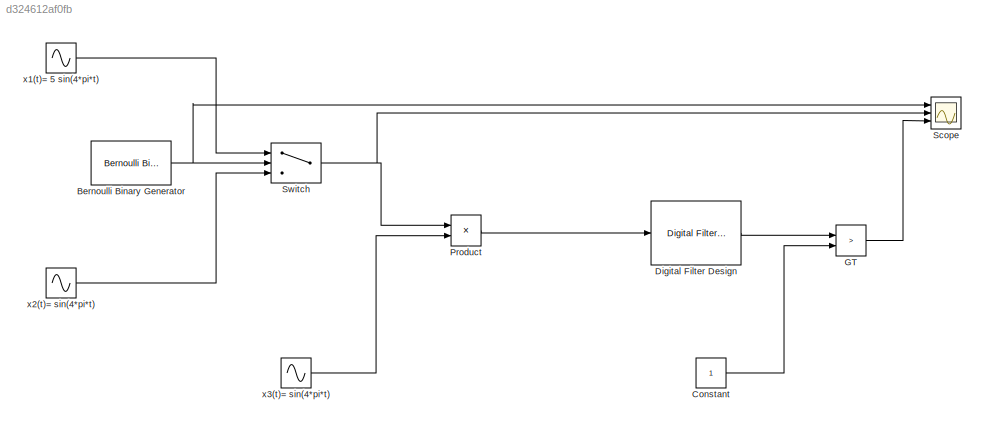
MODEL slx_d324612af0fb
KIND model
CONFIG AbsTol = auto
CONFIG EnableMultiTasking = off
CONFIG FixedStep = auto
CONFIG MaxStep = auto
CONFIG MinStep = auto
CONFIG RelTol = 1e-3
CONFIG SampleTimeConstraint = Unconstrained
CONFIG Solver = VariableStepAuto
CONFIG SolverName = VariableStepAuto
CONFIG StartTime = 0.0
CONFIG StopTime = 20
BLOCK [Reference] Bernoulli Binary Generator  REF=commrandsrc3/Bernoulli Binary
Generator
  Ports = [0, 1]
  SourceBlock = commrandsrc3/Bernoulli Binary\nGenerator
  SourceProductBaseCode = CM
  SourceType = Bernoulli Binary Generator
BLOCK [Constant] Constant
BLOCK [Reference] Digital Filter Design  REF=dsparch4/Digital
Filter Design
  Ports = [1, 1]
  SourceBlock = dsparch4/Digital\nFilter Design
  SourceProductBaseCode = DS
  SourceType = Digital Filter Design
  UserDataPersistent = on
BLOCK [RelationalOperator] GT
  InputSameDT = off
  Operator = >
  OutDataTypeStr = boolean
  Ports = [2, 1]
  RndMeth = Simplest
BLOCK [Product] Product
  Ports = [2, 1]
BLOCK [Scope] Scope
  Floating = off
  NumInputPorts = 3
  Ports = [3]
  ScopeSpecificationString = Simulink.scopes.TimeScopeBlockCfg('CurrentConfiguration', extmgr.ConfigurationSet(extmgr.Configuration('Core','General UI',true,'FigureColor',[0.67843137254902 0.92156862745098 1]),extmgr.Configuration('Core','Source UI',true),extmgr.Configuration('Sources','WiredSimulink',true),extmgr.Configuration('Visuals','Time Domain',true,'SerializedDisplays',{struct('MinYLimReal','-0.125','MaxYLimReal','1.1...<+3110ch>
BLOCK [Switch] Switch
  Criteria = u2 > Threshold
  InputSameDT = off
  SaturateOnIntegerOverflow = off
BLOCK [Sin] x1(t)= 5 sin(4*pi*t)
  Amplitude = 5
  Frequency = 4*pi
  Ports = [0, 1]
  SampleTime = 0.01
BLOCK [Sin] x2(t)= sin(4*pi*t)
  Frequency = 4*pi
  Ports = [0, 1]
  SampleTime = 0.01
BLOCK [Sin] x3(t)= sin(4*pi*t)
  Frequency = 4*pi
  Ports = [0, 1]
  SampleTime = 0.1
NET Bernoulli Binary Generator:1 -> Scope:1, Switch:2
LINE Constant:1 -> GT:2
LINE Digital Filter Design:1 -> GT:1
LINE GT:1 -> Scope:3
LINE Product:1 -> Digital Filter Design:1
NET Switch:1 -> Product:1, Scope:2
LINE x1(t)= 5 sin(4*pi*t):1 -> Switch:1
LINE x2(t)= sin(4*pi*t):1 -> Switch:3
LINE x3(t)= sin(4*pi*t):1 -> Product:2
note: NET lines group one-source signal fan-out (src -> all destinations, sorted); 1:1 wires keep LINE
